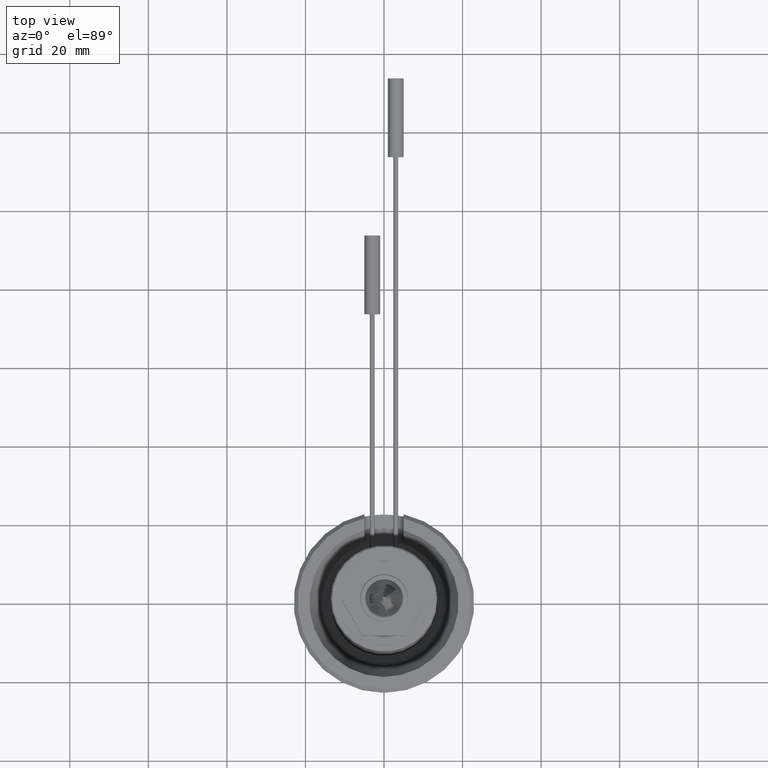
[diagram: clean part render]
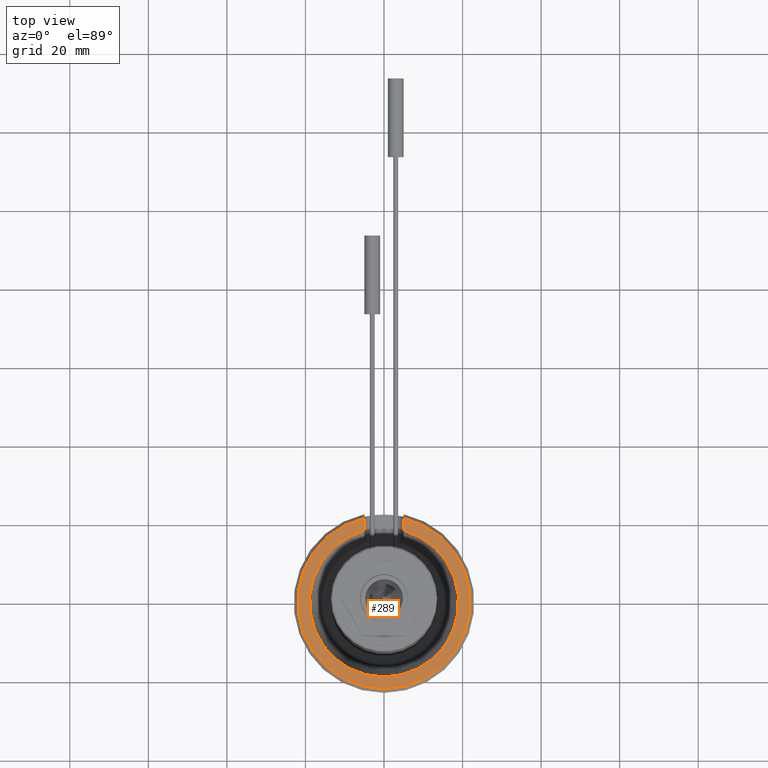
[diagram: same view with one face highlighted and labeled with its STEP entity id]
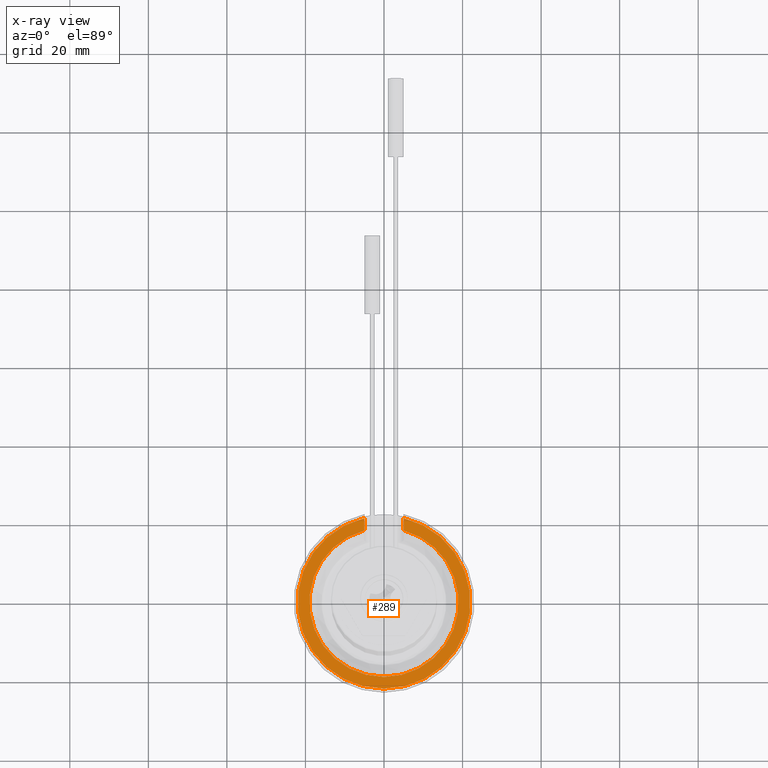
[diagram: x-ray of the same camera — body ghosted, the highlighted face saturated]
A machine part, top view. The second image highlights one B-rep face of the part: STEP entity #289.
The next image is the same camera in x-ray: the body ghosted, the highlighted face saturated — about 0% of this face is hidden behind the body in this view.
In plain terms, the highlighted planar face has unit normal (0, 0, -1).
Its self-contained STEP definition (entity closure, byte-faithful):
#59=LINE('',#1873,#103);
#60=LINE('',#1877,#104);
#103=VECTOR('',#1394,1.);
#104=VECTOR('',#1397,1.);
#196=PLANE('',#1167);
#238=FACE_OUTER_BOUND('',#457,.T.);
#289=ADVANCED_FACE('',(#238),#196,.F.);
#457=EDGE_LOOP('',(#623,#624,#625,#626));
#623=ORIENTED_EDGE('',*,*,#968,.T.);
#624=ORIENTED_EDGE('',*,*,#969,.T.);
#625=ORIENTED_EDGE('',*,*,#970,.F.);
#626=ORIENTED_EDGE('',*,*,#965,.F.);
#858=VERTEX_POINT('',#1854);
#859=VERTEX_POINT('',#1856);
#861=VERTEX_POINT('',#1874);
#862=VERTEX_POINT('',#1876);
#965=EDGE_CURVE('',#858,#859,#1059,.T.);
#968=EDGE_CURVE('',#858,#861,#59,.T.);
#969=EDGE_CURVE('',#861,#862,#1060,.T.);
#970=EDGE_CURVE('',#859,#862,#60,.T.);
#1059=CIRCLE('',#1164,18.9996646888082);
#1060=CIRCLE('',#1166,22.);
#1164=AXIS2_PLACEMENT_3D('',#1855,#1390,#1391);
#1166=AXIS2_PLACEMENT_3D('',#1875,#1395,#1396);
#1167=AXIS2_PLACEMENT_3D('',#1878,#1398,#1399);
#1390=DIRECTION('',(0.,0.,1.));
#1391=DIRECTION('',(1.,0.,0.));
#1394=DIRECTION('',(0.,1.,0.));
#1395=DIRECTION('',(0.,0.,1.));
#1396=DIRECTION('',(-1.,0.,0.));
#1397=DIRECTION('',(0.,1.,0.));
#1398=DIRECTION('',(0.,0.,-1.));
#1399=DIRECTION('',(-1.,0.,0.));
#1854=CARTESIAN_POINT('',(-4.99999999999501,18.3299552178175,25.));
#1855=CARTESIAN_POINT('',(0.,0.,25.));
#1856=CARTESIAN_POINT('',(4.999999999995,18.3299552178175,25.));
#1873=CARTESIAN_POINT('',(-4.99999999999501,13.5,25.));
#1874=CARTESIAN_POINT('',(-4.99999999999501,21.4242852856297,25.));
#1875=CARTESIAN_POINT('',(0.,0.,25.));
#1876=CARTESIAN_POINT('',(4.999999999995,21.4242852856297,25.));
#1877=CARTESIAN_POINT('',(4.999999999995,13.5,25.));
#1878=CARTESIAN_POINT('',(-23.,0.,25.));